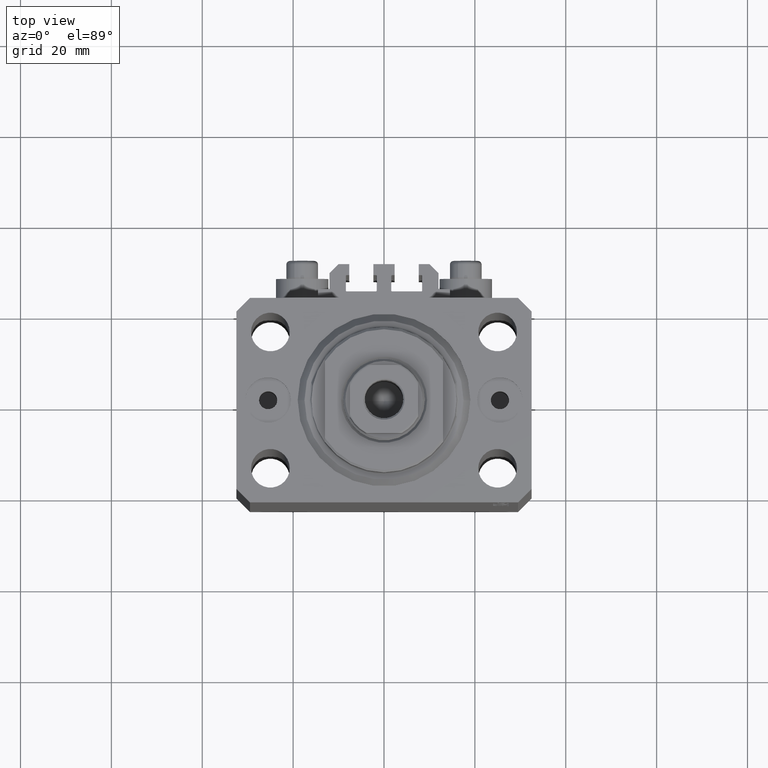
[diagram: clean part render]
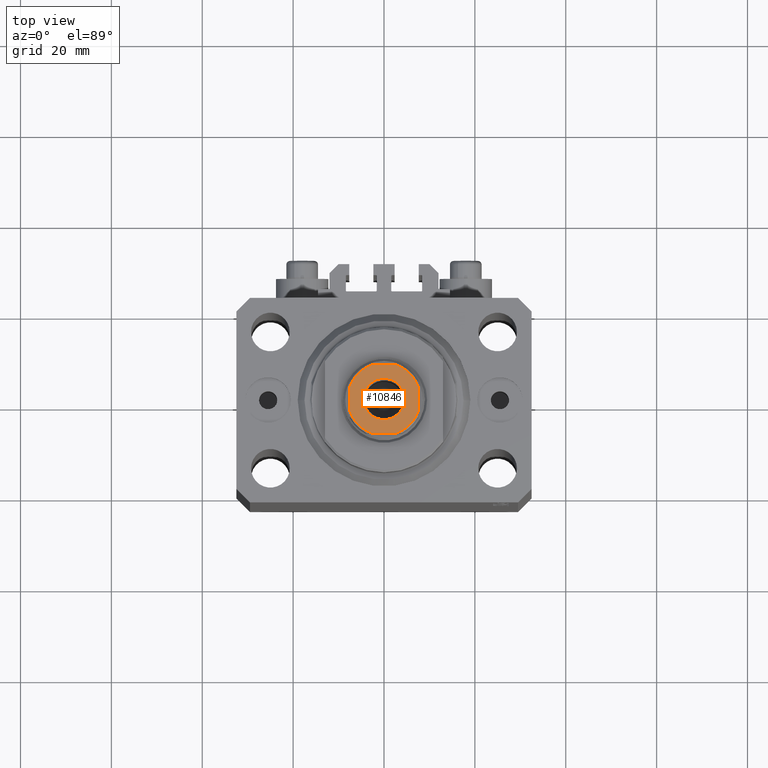
[diagram: same view with one face highlighted and labeled with its STEP entity id]
A machine part, top view. The second image highlights one B-rep face of the part: STEP entity #10846.
In plain terms, the highlighted planar face has unit normal (0, 0, 1).
Its self-contained STEP definition (entity closure, byte-faithful):
#24 = EDGE_CURVE ( 'NONE', #33150, #14549, #7871, .T. ) ;
#406 = CARTESIAN_POINT ( 'NONE',  ( 0.000000000000000000, 0.000000000000000000, 130.0999999999999943 ) ) ;
#1740 = CIRCLE ( 'NONE', #40639, 8.000000000000000000 ) ;
#2495 = DIRECTION ( 'NONE',  ( 1.000000000000000000, 0.000000000000000000, 0.000000000000000000 ) ) ;
#2682 = CARTESIAN_POINT ( 'NONE',  ( 0.000000000000000000, 0.000000000000000000, 130.0999999999999943 ) ) ;
#3114 = CARTESIAN_POINT ( 'NONE',  ( 2.783882181415008539, -7.500000000000000888, 130.0999999999999943 ) ) ;
#3564 = CARTESIAN_POINT ( 'NONE',  ( 7.500000000000000888, 2.783882181415007206, 130.0999999999999943 ) ) ;
#4150 = ORIENTED_EDGE ( 'NONE', *, *, #20395, .T. ) ;
#4793 = ORIENTED_EDGE ( 'NONE', *, *, #32812, .T. ) ;
#4846 = AXIS2_PLACEMENT_3D ( 'NONE', #39436, #6757, #25123 ) ;
#6757 = DIRECTION ( 'NONE',  ( 0.000000000000000000, -0.000000000000000000, -1.000000000000000000 ) ) ;
#7591 = DIRECTION ( 'NONE',  ( -0.000000000000000000, 0.000000000000000000, 1.000000000000000000 ) ) ;
#7871 = LINE ( 'NONE', #44359, #40270 ) ;
#8535 = ORIENTED_EDGE ( 'NONE', *, *, #25201, .T. ) ;
#9225 = DIRECTION ( 'NONE',  ( 0.000000000000000000, -0.000000000000000000, -1.000000000000000000 ) ) ;
#9801 = DIRECTION ( 'NONE',  ( -0.000000000000000000, 0.000000000000000000, 1.000000000000000000 ) ) ;
#9882 = EDGE_CURVE ( 'NONE', #14549, #26431, #45078, .T. ) ;
#10141 = DIRECTION ( 'NONE',  ( -0.000000000000000000, 0.000000000000000000, 1.000000000000000000 ) ) ;
#10846 = ADVANCED_FACE ( 'NONE', ( #12083, #12329 ), #23520, .T. ) ;
#11568 = ORIENTED_EDGE ( 'NONE', *, *, #9882, .T. ) ;
#12083 = FACE_BOUND ( 'NONE', #28782, .T. ) ;
#12329 = FACE_OUTER_BOUND ( 'NONE', #41686, .T. ) ;
#12473 = DIRECTION ( 'NONE',  ( 5.782411586589357392E-17, -1.000000000000000000, 0.000000000000000000 ) ) ;
#12808 = CARTESIAN_POINT ( 'NONE',  ( 0.000000000000000000, 0.000000000000000000, 130.0999999999999943 ) ) ;
#13341 = CARTESIAN_POINT ( 'NONE',  ( -7.499999999999998224, -2.783882181415016088, 130.0999999999999943 ) ) ;
#14468 = CARTESIAN_POINT ( 'NONE',  ( 7.500000000000000888, -2.783882181415009427, 130.0999999999999943 ) ) ;
#14533 = VECTOR ( 'NONE', #17028, 1000.000000000000000 ) ;
#14549 = VERTEX_POINT ( 'NONE', #3114 ) ;
#15318 = CARTESIAN_POINT ( 'NONE',  ( -2.783882181415013868, 7.499999999999999112, 130.0999999999999943 ) ) ;
#16185 = DIRECTION ( 'NONE',  ( -0.000000000000000000, 0.000000000000000000, 1.000000000000000000 ) ) ;
#16402 = ORIENTED_EDGE ( 'NONE', *, *, #24, .T. ) ;
#16645 = DIRECTION ( 'NONE',  ( 1.000000000000000000, 0.000000000000000000, 0.000000000000000000 ) ) ;
#16960 = CARTESIAN_POINT ( 'NONE',  ( 0.000000000000000000, 0.000000000000000000, 130.0999999999999943 ) ) ;
#17028 = DIRECTION ( 'NONE',  ( 1.156482317317871478E-16, 1.000000000000000000, -0.000000000000000000 ) ) ;
#17122 = CARTESIAN_POINT ( 'NONE',  ( 0.000000000000000000, 0.000000000000000000, 130.0999999999999943 ) ) ;
#17258 = CARTESIAN_POINT ( 'NONE',  ( 7.500000000000001776, 7.500000000000000000, 130.0999999999999943 ) ) ;
#19629 = VERTEX_POINT ( 'NONE', #45905 ) ;
#20395 = EDGE_CURVE ( 'NONE', #19629, #40623, #27543, .T. ) ;
#21578 = AXIS2_PLACEMENT_3D ( 'NONE', #16960, #9801, #24346 ) ;
#21943 = CARTESIAN_POINT ( 'NONE',  ( -7.499999999999998224, 2.783882181415015644, 130.0999999999999943 ) ) ;
#22669 = VECTOR ( 'NONE', #42108, 1000.000000000000000 ) ;
#23125 = CIRCLE ( 'NONE', #4846, 4.549999999999998934 ) ;
#23520 = PLANE ( 'NONE',  #43620 ) ;
#24346 = DIRECTION ( 'NONE',  ( 1.000000000000000000, 0.000000000000000000, 0.000000000000000000 ) ) ;
#25123 = DIRECTION ( 'NONE',  ( 1.000000000000000000, 0.000000000000000000, 0.000000000000000000 ) ) ;
#25201 = EDGE_CURVE ( 'NONE', #26431, #40830, #45647, .T. ) ;
#26431 = VERTEX_POINT ( 'NONE', #14468 ) ;
#27543 = LINE ( 'NONE', #34930, #22669 ) ;
#28478 = AXIS2_PLACEMENT_3D ( 'NONE', #12808, #9225, #30693 ) ;
#28782 = EDGE_LOOP ( 'NONE', ( #38229, #45496 ) ) ;
#29142 = VERTEX_POINT ( 'NONE', #44911 ) ;
#30693 = DIRECTION ( 'NONE',  ( 1.000000000000000000, 0.000000000000000000, 0.000000000000000000 ) ) ;
#31405 = VECTOR ( 'NONE', #12473, 1000.000000000000000 ) ;
#31662 = ORIENTED_EDGE ( 'NONE', *, *, #35522, .T. ) ;
#32060 = EDGE_CURVE ( 'NONE', #40623, #42840, #1740, .T. ) ;
#32206 = ORIENTED_EDGE ( 'NONE', *, *, #32060, .T. ) ;
#32812 = EDGE_CURVE ( 'NONE', #40830, #19629, #42161, .T. ) ;
#33043 = CARTESIAN_POINT ( 'NONE',  ( -2.783882181415010315, -7.500000000000000888, 130.0999999999999943 ) ) ;
#33150 = VERTEX_POINT ( 'NONE', #33043 ) ;
#33743 = AXIS2_PLACEMENT_3D ( 'NONE', #406, #7591, #46960 ) ;
#33908 = VERTEX_POINT ( 'NONE', #13341 ) ;
#34867 = CARTESIAN_POINT ( 'NONE',  ( -7.499999999999998224, 7.499999999999999112, 130.0999999999999943 ) ) ;
#34930 = CARTESIAN_POINT ( 'NONE',  ( -7.499999999999998224, 7.499999999999999112, 130.0999999999999943 ) ) ;
#34971 = EDGE_CURVE ( 'NONE', #42840, #33908, #37741, .T. ) ;
#35522 = EDGE_CURVE ( 'NONE', #33908, #33150, #39051, .T. ) ;
#35666 = CARTESIAN_POINT ( 'NONE',  ( 0.000000000000000000, 0.000000000000000000, 130.0999999999999943 ) ) ;
#36121 = CIRCLE ( 'NONE', #28478, 4.549999999999998934 ) ;
#37741 = LINE ( 'NONE', #34867, #31405 ) ;
#38229 = ORIENTED_EDGE ( 'NONE', *, *, #43139, .T. ) ;
#39051 = CIRCLE ( 'NONE', #33743, 8.000000000000000000 ) ;
#39436 = CARTESIAN_POINT ( 'NONE',  ( 0.000000000000000000, 0.000000000000000000, 130.0999999999999943 ) ) ;
#39782 = AXIS2_PLACEMENT_3D ( 'NONE', #35666, #10141, #2495 ) ;
#40270 = VECTOR ( 'NONE', #47000, 1000.000000000000000 ) ;
#40623 = VERTEX_POINT ( 'NONE', #15318 ) ;
#40639 = AXIS2_PLACEMENT_3D ( 'NONE', #17122, #16185, #16645 ) ;
#40830 = VERTEX_POINT ( 'NONE', #3564 ) ;
#41438 = DIRECTION ( 'NONE',  ( -0.000000000000000000, 0.000000000000000000, 1.000000000000000000 ) ) ;
#41686 = EDGE_LOOP ( 'NONE', ( #46507, #31662, #16402, #11568, #8535, #4793, #4150, #32206 ) ) ;
#42108 = DIRECTION ( 'NONE',  ( -1.000000000000000000, -5.782411586589357392E-17, -0.000000000000000000 ) ) ;
#42161 = CIRCLE ( 'NONE', #21578, 8.000000000000000000 ) ;
#42435 = CARTESIAN_POINT ( 'NONE',  ( 4.549999999999998934, 0.000000000000000000, 130.0999999999999943 ) ) ;
#42591 = EDGE_CURVE ( 'NONE', #29142, #42959, #23125, .T. ) ;
#42840 = VERTEX_POINT ( 'NONE', #21943 ) ;
#42959 = VERTEX_POINT ( 'NONE', #42435 ) ;
#43139 = EDGE_CURVE ( 'NONE', #42959, #29142, #36121, .T. ) ;
#43620 = AXIS2_PLACEMENT_3D ( 'NONE', #2682, #41438, #46117 ) ;
#44359 = CARTESIAN_POINT ( 'NONE',  ( -7.499999999999997335, -7.500000000000000888, 130.0999999999999943 ) ) ;
#44911 = CARTESIAN_POINT ( 'NONE',  ( -4.549999999999998934, 5.572142936120455355E-16, 130.0999999999999943 ) ) ;
#45078 = CIRCLE ( 'NONE', #39782, 8.000000000000000000 ) ;
#45496 = ORIENTED_EDGE ( 'NONE', *, *, #42591, .T. ) ;
#45647 = LINE ( 'NONE', #17258, #14533 ) ;
#45905 = CARTESIAN_POINT ( 'NONE',  ( 2.783882181415012980, 7.500000000000000000, 130.0999999999999943 ) ) ;
#46117 = DIRECTION ( 'NONE',  ( 1.000000000000000000, 0.000000000000000000, 0.000000000000000000 ) ) ;
#46507 = ORIENTED_EDGE ( 'NONE', *, *, #34971, .T. ) ;
#46960 = DIRECTION ( 'NONE',  ( 1.000000000000000000, 0.000000000000000000, 0.000000000000000000 ) ) ;
#47000 = DIRECTION ( 'NONE',  ( 1.000000000000000000, 5.782411586589358625E-17, 0.000000000000000000 ) ) ;